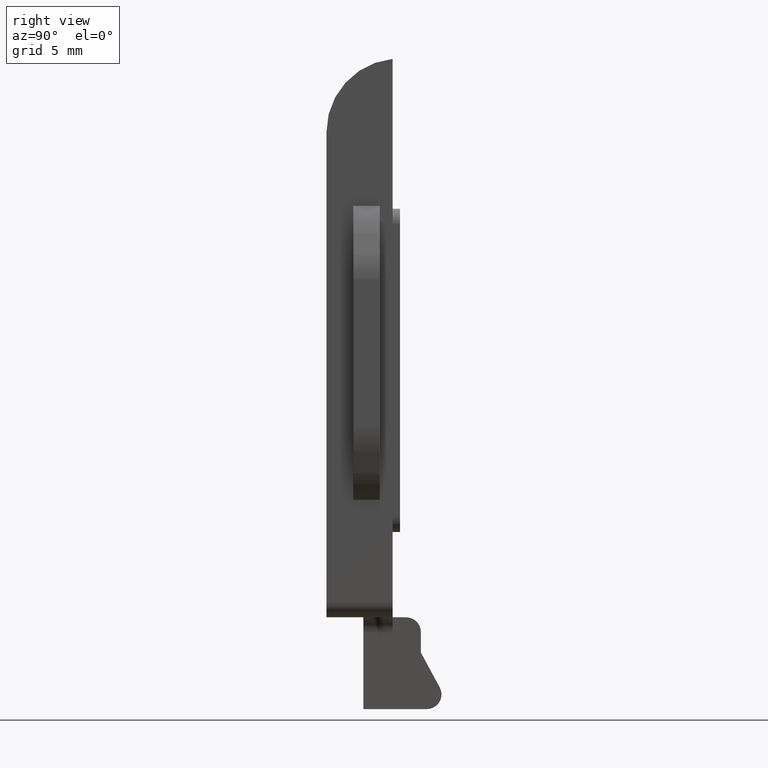
[diagram: clean part render]
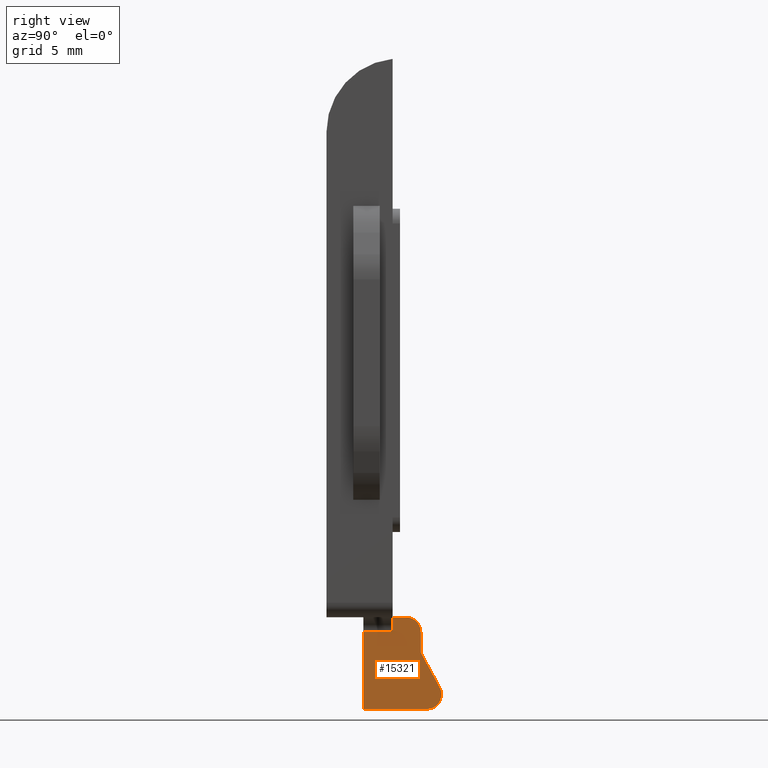
[diagram: same view with one face highlighted and labeled with its STEP entity id]
A machine part, right view. The second image highlights one B-rep face of the part: STEP entity #15321.
In plain terms, the highlighted planar face has unit normal (1, -0, 0).
Its self-contained STEP definition (entity closure, byte-faithful):
#194 = LINE ( 'NONE', #2171, #3164 ) ;
#367 = CARTESIAN_POINT ( 'NONE',  ( 4.500000000000000000, 6.831214428259021254, -5.250000000000000000 ) ) ;
#403 = VERTEX_POINT ( 'NONE', #16193 ) ;
#781 = CARTESIAN_POINT ( 'NONE',  ( 4.499999999999999112, -7.335032018668016670E-16, -1.000000000000000000 ) ) ;
#1118 = CARTESIAN_POINT ( 'NONE',  ( 4.499999999999999112, 2.509999999999999787, -1.000000000000000000 ) ) ;
#1305 = AXIS2_PLACEMENT_3D ( 'NONE', #7284, #5774, #7228 ) ;
#1339 = CARTESIAN_POINT ( 'NONE',  ( 4.500000000000000000, 6.831214428259021254, -6.250000000000000000 ) ) ;
#1601 = CARTESIAN_POINT ( 'NONE',  ( 4.500000000000000000, 5.424999999999999822, 0.000000000000000000 ) ) ;
#2116 = ORIENTED_EDGE ( 'NONE', *, *, #7917, .T. ) ;
#2138 = DIRECTION ( 'NONE',  ( 1.860270795296047257E-32, 1.141265444721583757E-16, -1.000000000000000000 ) ) ;
#2171 = CARTESIAN_POINT ( 'NONE',  ( 4.499999999999999112, -7.335032018668016670E-16, 0.000000000000000000 ) ) ;
#2319 = ORIENTED_EDGE ( 'NONE', *, *, #6156, .T. ) ;
#2728 = DIRECTION ( 'NONE',  ( -0.000000000000000000, -0.000000000000000000, -1.000000000000000000 ) ) ;
#2849 = VECTOR ( 'NONE', #2728, 1000.000000000000000 ) ;
#3085 = VERTEX_POINT ( 'NONE', #1339 ) ;
#3164 = VECTOR ( 'NONE', #12234, 1000.000000000000000 ) ;
#3227 = EDGE_LOOP ( 'NONE', ( #6992, #2319, #5648, #6663, #9061, #11355, #2116, #7449, #11382 ) ) ;
#3250 = CIRCLE ( 'NONE', #1305, 1.000000000000000000 ) ;
#3335 = DIRECTION ( 'NONE',  ( 1.000000000000000000, -1.630007115259559753E-16, 0.000000000000000000 ) ) ;
#3365 = DIRECTION ( 'NONE',  ( -1.630007115259559753E-16, -1.000000000000000000, 0.000000000000000000 ) ) ;
#3544 = EDGE_CURVE ( 'NONE', #15952, #8969, #12164, .T. ) ;
#4075 = DIRECTION ( 'NONE',  ( -1.000000000000000000, 1.630007115259559753E-16, -0.000000000000000000 ) ) ;
#4159 = EDGE_CURVE ( 'NONE', #8745, #403, #7595, .T. ) ;
#4287 = EDGE_CURVE ( 'NONE', #11613, #15021, #14519, .T. ) ;
#4588 = DIRECTION ( 'NONE',  ( 1.630007115259559753E-16, 1.000000000000000000, 0.000000000000000000 ) ) ;
#4798 = CIRCLE ( 'NONE', #7175, 1.000000000000000000 ) ;
#5029 = DIRECTION ( 'NONE',  ( -1.630007115259559753E-16, -1.000000000000000000, 0.000000000000000000 ) ) ;
#5089 = EDGE_CURVE ( 'NONE', #11613, #3085, #4798, .T. ) ;
#5648 = ORIENTED_EDGE ( 'NONE', *, *, #4159, .T. ) ;
#5774 = DIRECTION ( 'NONE',  ( -1.000000000000000000, 1.630007115259559753E-16, -0.000000000000000000 ) ) ;
#6156 = EDGE_CURVE ( 'NONE', #8969, #8745, #8561, .T. ) ;
#6663 = ORIENTED_EDGE ( 'NONE', *, *, #14417, .F. ) ;
#6992 = ORIENTED_EDGE ( 'NONE', *, *, #3544, .T. ) ;
#7175 = AXIS2_PLACEMENT_3D ( 'NONE', #367, #4075, #15554 ) ;
#7228 = DIRECTION ( 'NONE',  ( 0.000000000000000000, 1.000000000000000000, 0.000000000000000000 ) ) ;
#7284 = CARTESIAN_POINT ( 'NONE',  ( 4.500000000000000000, 5.424999999999999822, -1.000000000000000000 ) ) ;
#7381 = VECTOR ( 'NONE', #3365, 1000.000000000000000 ) ;
#7449 = ORIENTED_EDGE ( 'NONE', *, *, #15405, .F. ) ;
#7595 = LINE ( 'NONE', #12620, #2849 ) ;
#7917 = EDGE_CURVE ( 'NONE', #15021, #14110, #15855, .T. ) ;
#8151 = CARTESIAN_POINT ( 'NONE',  ( 4.500000000000000000, 7.710546246380076241, -4.773790430965610732 ) ) ;
#8543 = DIRECTION ( 'NONE',  ( 0.000000000000000000, 0.000000000000000000, 1.000000000000000000 ) ) ;
#8561 = LINE ( 'NONE', #781, #7381 ) ;
#8645 = PLANE ( 'NONE',  #15047 ) ;
#8745 = VERTEX_POINT ( 'NONE', #1118 ) ;
#8835 = CARTESIAN_POINT ( 'NONE',  ( 4.499999999999999112, -7.335032018668016670E-16, -6.250000000000000000 ) ) ;
#8962 = CARTESIAN_POINT ( 'NONE',  ( 4.499999999999999112, -7.335032018668016670E-16, 6.779035550246951480 ) ) ;
#8969 = VERTEX_POINT ( 'NONE', #9912 ) ;
#9061 = ORIENTED_EDGE ( 'NONE', *, *, #5089, .F. ) ;
#9386 = VECTOR ( 'NONE', #2138, 1000.000000000000000 ) ;
#9485 = DIRECTION ( 'NONE',  ( -7.762249858807436606E-17, -0.4762095690343896570, 0.8793318181210554307 ) ) ;
#9717 = CARTESIAN_POINT ( 'NONE',  ( 4.500000000000000000, 4.499999999999999112, 6.779035550246952369 ) ) ;
#9912 = CARTESIAN_POINT ( 'NONE',  ( 4.500000000000000000, 4.500000000000000000, -1.000000000000000000 ) ) ;
#10242 = EDGE_CURVE ( 'NONE', #14540, #15952, #194, .T. ) ;
#10498 = VECTOR ( 'NONE', #8543, 1000.000000000000000 ) ;
#10781 = CARTESIAN_POINT ( 'NONE',  ( 4.500000000000000000, 4.500000000000000000, 0.000000000000000000 ) ) ;
#11355 = ORIENTED_EDGE ( 'NONE', *, *, #4287, .T. ) ;
#11382 = ORIENTED_EDGE ( 'NONE', *, *, #10242, .T. ) ;
#11613 = VERTEX_POINT ( 'NONE', #8151 ) ;
#11737 = FACE_OUTER_BOUND ( 'NONE', #3227, .T. ) ;
#11909 = CARTESIAN_POINT ( 'NONE',  ( 4.500000000000000000, 6.424999999999999822, -2.400000000000000355 ) ) ;
#11961 = LINE ( 'NONE', #8835, #15929 ) ;
#12145 = VECTOR ( 'NONE', #9485, 1000.000000000000000 ) ;
#12164 = LINE ( 'NONE', #9717, #9386 ) ;
#12234 = DIRECTION ( 'NONE',  ( -1.630007115259559753E-16, -1.000000000000000000, 0.000000000000000000 ) ) ;
#12620 = CARTESIAN_POINT ( 'NONE',  ( 4.499999999999999112, 2.509999999999999787, 6.779035550246951480 ) ) ;
#12631 = CARTESIAN_POINT ( 'NONE',  ( 4.500000000000000000, 6.424999999999999822, -2.399999999999999911 ) ) ;
#12729 = CARTESIAN_POINT ( 'NONE',  ( 4.500000000000000000, 6.424999999999999822, -1.000000000000000000 ) ) ;
#14110 = VERTEX_POINT ( 'NONE', #12729 ) ;
#14417 = EDGE_CURVE ( 'NONE', #3085, #403, #11961, .T. ) ;
#14519 = LINE ( 'NONE', #11909, #12145 ) ;
#14540 = VERTEX_POINT ( 'NONE', #1601 ) ;
#15011 = CARTESIAN_POINT ( 'NONE',  ( 4.500000000000000000, 6.424999999999999822, 0.000000000000000000 ) ) ;
#15021 = VERTEX_POINT ( 'NONE', #12631 ) ;
#15047 = AXIS2_PLACEMENT_3D ( 'NONE', #8962, #3335, #4588 ) ;
#15321 = ADVANCED_FACE ( 'NONE', ( #11737 ), #8645, .T. ) ;
#15405 = EDGE_CURVE ( 'NONE', #14540, #14110, #3250, .T. ) ;
#15554 = DIRECTION ( 'NONE',  ( 0.000000000000000000, 1.000000000000000000, 0.000000000000000000 ) ) ;
#15855 = LINE ( 'NONE', #15011, #10498 ) ;
#15929 = VECTOR ( 'NONE', #5029, 1000.000000000000000 ) ;
#15952 = VERTEX_POINT ( 'NONE', #10781 ) ;
#16193 = CARTESIAN_POINT ( 'NONE',  ( 4.499999999999999112, 2.509999999999999787, -6.250000000000000000 ) ) ;